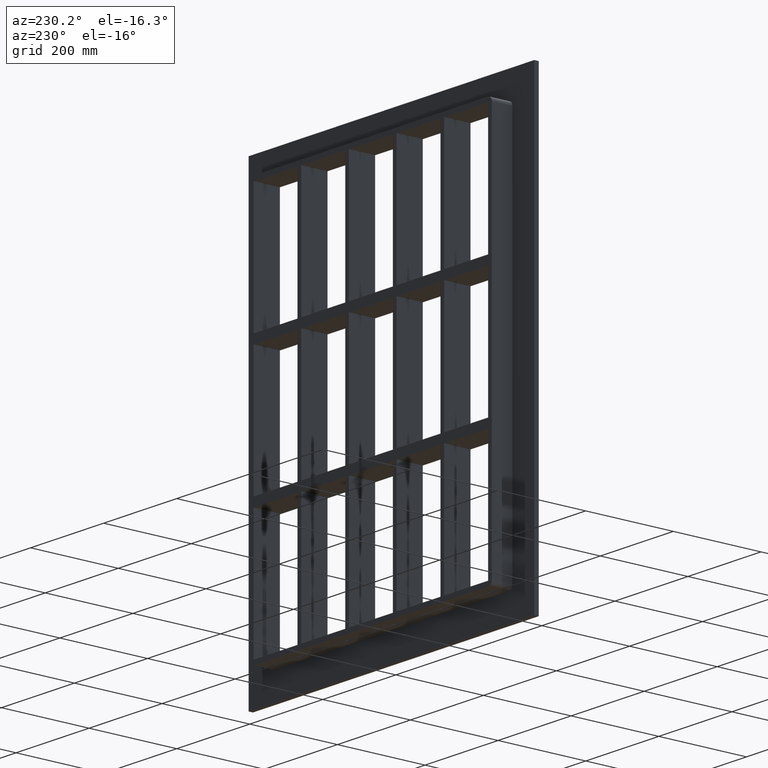
[diagram: clean part render]
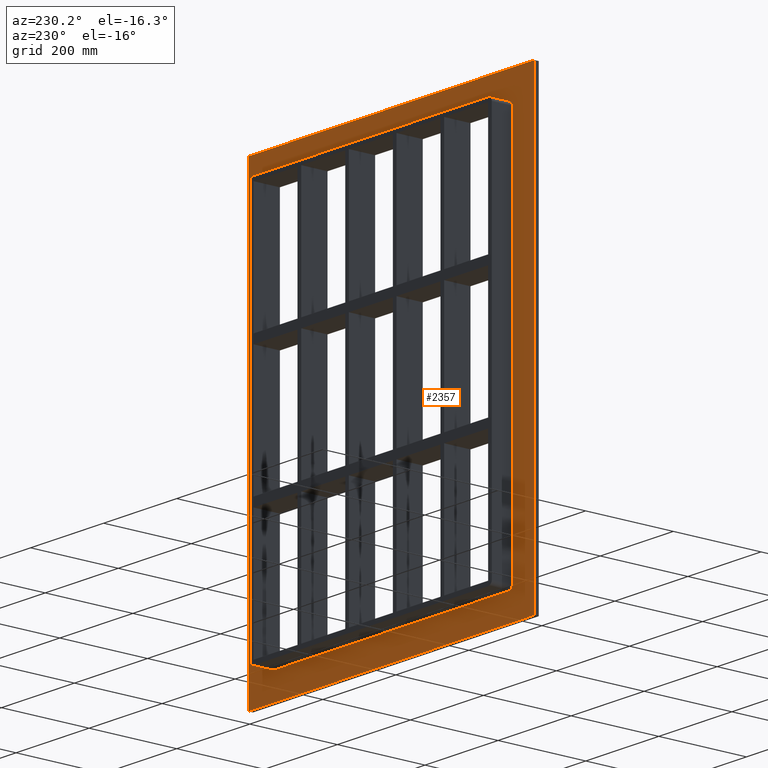
[diagram: same view with one face highlighted and labeled with its STEP entity id]
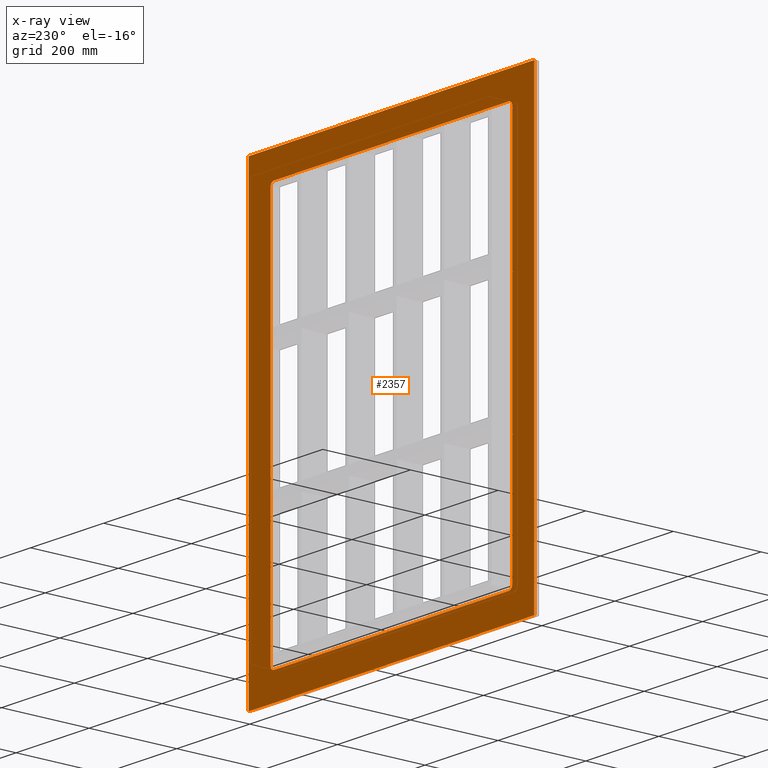
[diagram: x-ray of the same camera — body ghosted, the highlighted face saturated]
A machine part, auxiliary view. The second image highlights one B-rep face of the part: STEP entity #2357.
The next image is the same camera in x-ray: the body ghosted, the highlighted face saturated — about 0% of this face is hidden behind the body in this view.
In plain terms, the highlighted planar face has unit normal (0, 1, 0).
Its self-contained STEP definition (entity closure, byte-faithful):
#2248=CARTESIAN_POINT('',(1.898472E-014,10.0,2.005261E-014));
#2249=DIRECTION('',(0.0,1.0,0.0));
#2250=DIRECTION('',(0.0,0.0,1.0));
#2251=AXIS2_PLACEMENT_3D('',#2248,#2249,#2250);
#2252=PLANE('',#2251);
#2253=CARTESIAN_POINT('',(-391.24999999999994,10.0,507.0));
#2254=VERTEX_POINT('',#2253);
#2255=CARTESIAN_POINT('',(391.25000000000006,10.0,507.0));
#2256=VERTEX_POINT('',#2255);
#2257=CARTESIAN_POINT('',(-391.24999999999994,10.0,507.0));
#2258=DIRECTION('',(1.0,0.0,0.0));
#2259=VECTOR('',#2258,782.5);
#2260=LINE('',#2257,#2259);
#2261=EDGE_CURVE('',#2254,#2256,#2260,.T.);
#2262=ORIENTED_EDGE('',*,*,#2261,.T.);
#2263=CARTESIAN_POINT('',(391.25000000000006,10.0,-507.0));
#2264=VERTEX_POINT('',#2263);
#2265=CARTESIAN_POINT('',(391.25,10.0,507.0));
#2266=DIRECTION('',(0.0,0.0,-1.0));
#2267=VECTOR('',#2266,1014.0);
#2268=LINE('',#2265,#2267);
#2269=EDGE_CURVE('',#2256,#2264,#2268,.T.);
#2270=ORIENTED_EDGE('',*,*,#2269,.T.);
#2271=CARTESIAN_POINT('',(-391.24999999999994,10.0,-507.0));
#2272=VERTEX_POINT('',#2271);
#2273=CARTESIAN_POINT('',(391.25,10.0,-506.99999999999994));
#2274=DIRECTION('',(-1.0,0.0,0.0));
#2275=VECTOR('',#2274,782.5);
#2276=LINE('',#2273,#2275);
#2277=EDGE_CURVE('',#2264,#2272,#2276,.T.);
#2278=ORIENTED_EDGE('',*,*,#2277,.T.);
#2279=CARTESIAN_POINT('',(-391.24999999999994,10.0,-506.99999999999994));
#2280=DIRECTION('',(0.0,0.0,1.0));
#2281=VECTOR('',#2280,1014.0);
#2282=LINE('',#2279,#2281);
#2283=EDGE_CURVE('',#2272,#2254,#2282,.T.);
#2284=ORIENTED_EDGE('',*,*,#2283,.T.);
#2285=EDGE_LOOP('',(#2262,#2270,#2278,#2284));
#2286=FACE_OUTER_BOUND('',#2285,.T.);
#2287=CARTESIAN_POINT('',(-321.25,10.0,-447.0));
#2288=VERTEX_POINT('',#2287);
#2289=CARTESIAN_POINT('',(-331.25,10.0,-437.0));
#2290=VERTEX_POINT('',#2289);
#2291=CARTESIAN_POINT('',(-321.25,10.0,-437.0));
#2292=DIRECTION('',(0.0,1.0,0.0));
#2293=DIRECTION('',(-0.707106781186547,0.0,-0.707106781186547));
#2294=AXIS2_PLACEMENT_3D('',#2291,#2292,#2293);
#2295=CIRCLE('',#2294,9.999999999999998);
#2296=EDGE_CURVE('',#2288,#2290,#2295,.T.);
#2297=ORIENTED_EDGE('',*,*,#2296,.F.);
#2298=CARTESIAN_POINT('',(321.25,10.0,-447.0));
#2299=VERTEX_POINT('',#2298);
#2300=CARTESIAN_POINT('',(321.25,10.0,-447.0));
#2301=DIRECTION('',(-1.0,0.0,0.0));
#2302=VECTOR('',#2301,642.5);
#2303=LINE('',#2300,#2302);
#2304=EDGE_CURVE('',#2299,#2288,#2303,.T.);
#2305=ORIENTED_EDGE('',*,*,#2304,.F.);
#2306=CARTESIAN_POINT('',(331.25,10.0,-437.0));
#2307=VERTEX_POINT('',#2306);
#2308=CARTESIAN_POINT('',(321.25,10.0,-437.0));
#2309=DIRECTION('',(0.0,1.0,0.0));
#2310=DIRECTION('',(0.707106781186547,0.0,-0.707106781186547));
#2311=AXIS2_PLACEMENT_3D('',#2308,#2309,#2310);
#2312=CIRCLE('',#2311,9.999999999999998);
#2313=EDGE_CURVE('',#2307,#2299,#2312,.T.);
#2314=ORIENTED_EDGE('',*,*,#2313,.F.);
#2315=CARTESIAN_POINT('',(331.25,10.0,437.0));
#2316=VERTEX_POINT('',#2315);
#2317=CARTESIAN_POINT('',(331.25,10.0,437.0));
#2318=DIRECTION('',(0.0,0.0,-1.0));
#2319=VECTOR('',#2318,874.00000000000011);
#2320=LINE('',#2317,#2319);
#2321=EDGE_CURVE('',#2316,#2307,#2320,.T.);
#2322=ORIENTED_EDGE('',*,*,#2321,.F.);
#2323=CARTESIAN_POINT('',(321.25,10.0,447.0));
#2324=VERTEX_POINT('',#2323);
#2325=CARTESIAN_POINT('',(321.25,10.0,437.0));
#2326=DIRECTION('',(0.0,1.0,0.0));
#2327=DIRECTION('',(0.707106781186547,0.0,0.707106781186547));
#2328=AXIS2_PLACEMENT_3D('',#2325,#2326,#2327);
#2329=CIRCLE('',#2328,9.999999999999998);
#2330=EDGE_CURVE('',#2324,#2316,#2329,.T.);
#2331=ORIENTED_EDGE('',*,*,#2330,.F.);
#2332=CARTESIAN_POINT('',(-321.25,10.0,447.0));
#2333=VERTEX_POINT('',#2332);
#2334=CARTESIAN_POINT('',(-321.25,10.0,447.0));
#2335=DIRECTION('',(1.0,0.0,0.0));
#2336=VECTOR('',#2335,642.5);
#2337=LINE('',#2334,#2336);
#2338=EDGE_CURVE('',#2333,#2324,#2337,.T.);
#2339=ORIENTED_EDGE('',*,*,#2338,.F.);
#2340=CARTESIAN_POINT('',(-331.25,10.0,437.0));
#2341=VERTEX_POINT('',#2340);
#2342=CARTESIAN_POINT('',(-321.25,10.0,437.0));
#2343=DIRECTION('',(0.0,1.0,0.0));
#2344=DIRECTION('',(-0.707106781186547,0.0,0.707106781186547));
#2345=AXIS2_PLACEMENT_3D('',#2342,#2343,#2344);
#2346=CIRCLE('',#2345,9.999999999999998);
#2347=EDGE_CURVE('',#2341,#2333,#2346,.T.);
#2348=ORIENTED_EDGE('',*,*,#2347,.F.);
#2349=CARTESIAN_POINT('',(-331.25,10.0,-437.0));
#2350=DIRECTION('',(0.0,0.0,1.0));
#2351=VECTOR('',#2350,874.00000000000011);
#2352=LINE('',#2349,#2351);
#2353=EDGE_CURVE('',#2290,#2341,#2352,.T.);
#2354=ORIENTED_EDGE('',*,*,#2353,.F.);
#2355=EDGE_LOOP('',(#2297,#2305,#2314,#2322,#2331,#2339,#2348,#2354));
#2356=FACE_BOUND('',#2355,.T.);
#2357=ADVANCED_FACE('',(#2286,#2356),#2252,.T.);